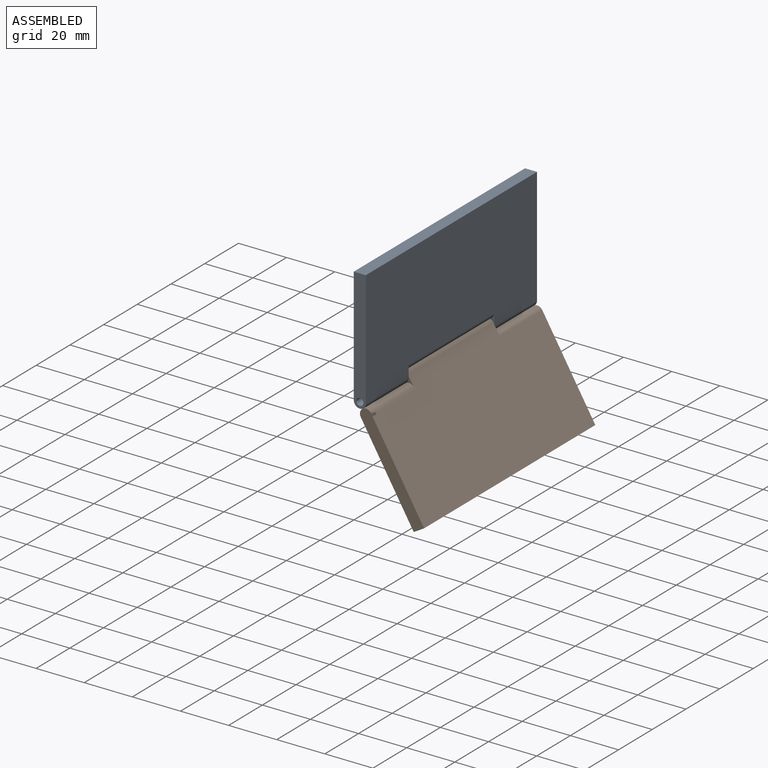
[diagram: assembled view]
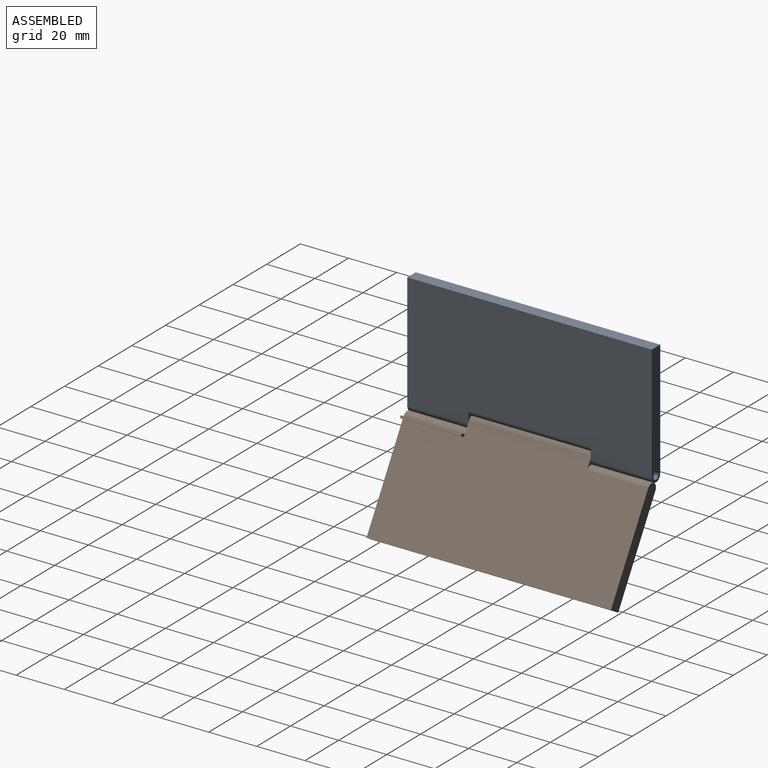
[diagram: assembled view, second angle]
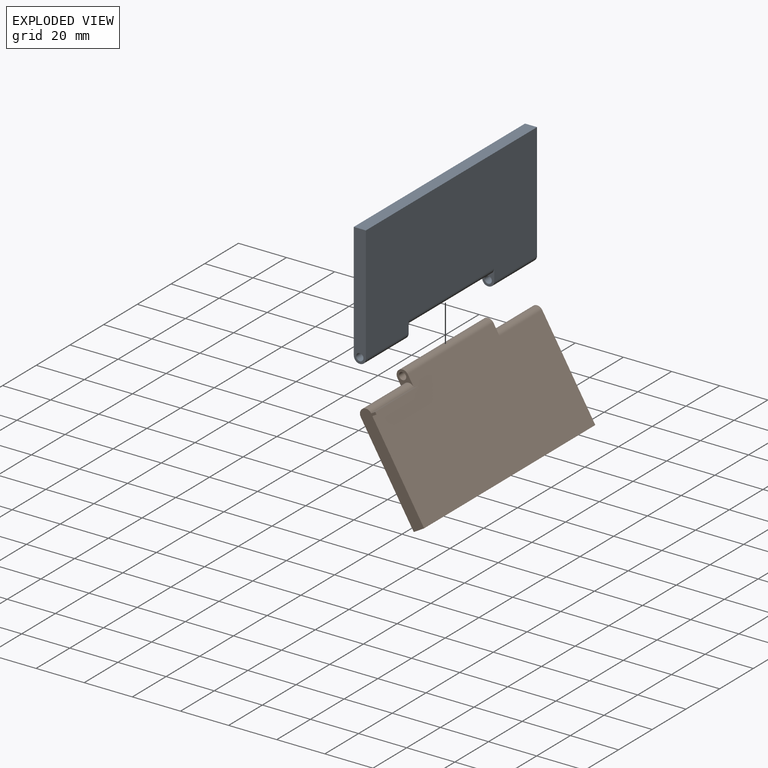
[diagram: exploded view]
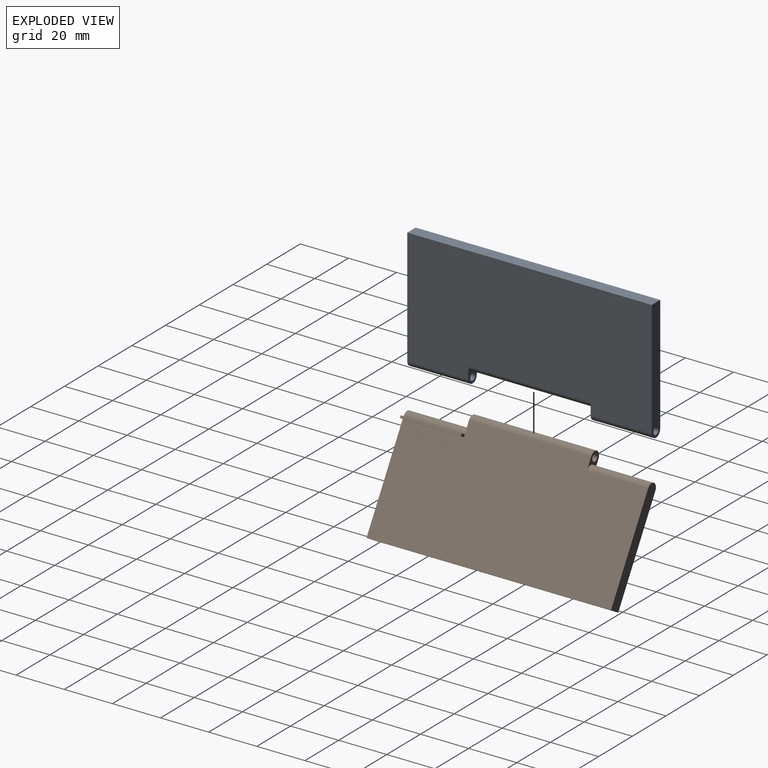
[diagram: exploded view, second angle]
ASSEMBLY  parts=2 mates=2
PART A: 12 faces, bbox 5x101.6x50.8 mm
  f0: plane 50.8x5mm, normal (0,-1,0), area 244.2mm2, adj f4,f5,f6,f9,f11
  f1: plane 7.5x5mm, normal (0,1,0), area 17.9mm2, adj f5,f6,f8,f9,f11
  f2: plane 7.5x5mm, normal (0,-1,0), area 17.9mm2, adj f5,f6,f7,f8,f10
  f3: plane 50.8x5mm, normal (0,1,0), area 244.2mm2, adj f4,f5,f6,f7,f10
  f4: plane 101.6x5mm, normal (0,0,1), area 508mm2, adj f0,f3,f5,f6
  f5: plane 101.6x48.3mm, normal (1,0,0), area 4653.3mm2, adj f0,f1,f2,f3,f4,f7,f8,f9
  f6: plane 101.6x48.3mm, normal (-1,0,0), area 4653.3mm2, adj f0,f1,f2,f3,f4,f7,f8,f9
  f7: cylinder r=2.5mm len=25.4mm, axis (0,-1,0), area 199.5mm2, adj f2,f3,f5,f6
  f8: cylinder r=2.5mm len=50.8mm, axis (0,-1,0), area 399mm2, adj f1,f2,f5,f6
  f9: cylinder r=2.5mm len=25.4mm, axis (0,-1,0), area 199.5mm2, adj f0,f1,f5,f6
  f10: cylinder r=1.5mm len=25.4mm, axis (0,1,0), area 239.4mm2, adj f2,f3
  f11: cylinder r=1.5mm len=25.4mm, axis (0,1,0), area 239.4mm2, adj f0,f1
PART B: 15 faces, bbox 7x101.6x50.8 mm
  f0: plane 101.6x48.3mm, normal (1,0,0), area 4627.9mm2, adj f1,f2,f3,f4,f5,f7,f9,f11
  f1: plane 7.5x5mm, normal (0,-1,0), area 17.9mm2, adj f0,f6,f8,f9,f10
  f2: plane 45.8x7mm, normal (0,-1,0), area 228.3mm2, adj f0,f3,f6,f8,f11,f13,f14
  f3: plane 101.6x5mm, normal (0,0,-1), area 508mm2, adj f0,f2,f4,f6
  f4: plane 45.8x5mm, normal (0,1,0), area 226.3mm2, adj f0,f3,f6,f7
  f5: plane 7.5x5mm, normal (0,1,0), area 17.9mm2, adj f0,f6,f7,f9,f10
  f6: plane 101.6x48.3mm, normal (-1,0,0), area 4653.3mm2, adj f1,f2,f3,f4,f5,f7,f8,f9
  f7: cylinder r=2.5mm len=25.4mm, axis (0,1,0), area 199.5mm2, adj f0,f4,f5,f6
  f8: cylinder r=2.5mm len=25.4mm, axis (0,1,0), area 199.5mm2, adj f1,f2,f6,f13
  f9: cylinder r=2.5mm len=50.8mm, axis (0,1,0), area 399mm2, adj f0,f1,f5,f6
  f10: cylinder r=1.5mm len=50.8mm, axis (0,-1,0), area 478.8mm2, adj f1,f5
  f11: plane 25.4x2mm, normal (0,0,-1), area 50.8mm2, adj f0,f2,f12,f14
  f12: plane 2x1mm, normal (0,1,0), area 2mm2, adj f0,f11,f13,f14
  f13: plane 25.4x2mm, normal (0,0,1), area 50.8mm2, adj f2,f8,f12,f14
  f14: plane 25.4x1mm, normal (1,0,0), area 25.4mm2, adj f2,f11,f12,f13
PLACE A at identity fixed
PLACE B rot(axis=(0,-1,0),30.6deg) t=(-0.92,0,3.38)mm
MATE cylindrical A.f7 <-> B.f9  axis (0,-1,0) through (2.5,76.2,2.5)mm
MATE planar A.f2 <-> B.f5  axis (0,-1,0) through (5,76.2,5)mm
